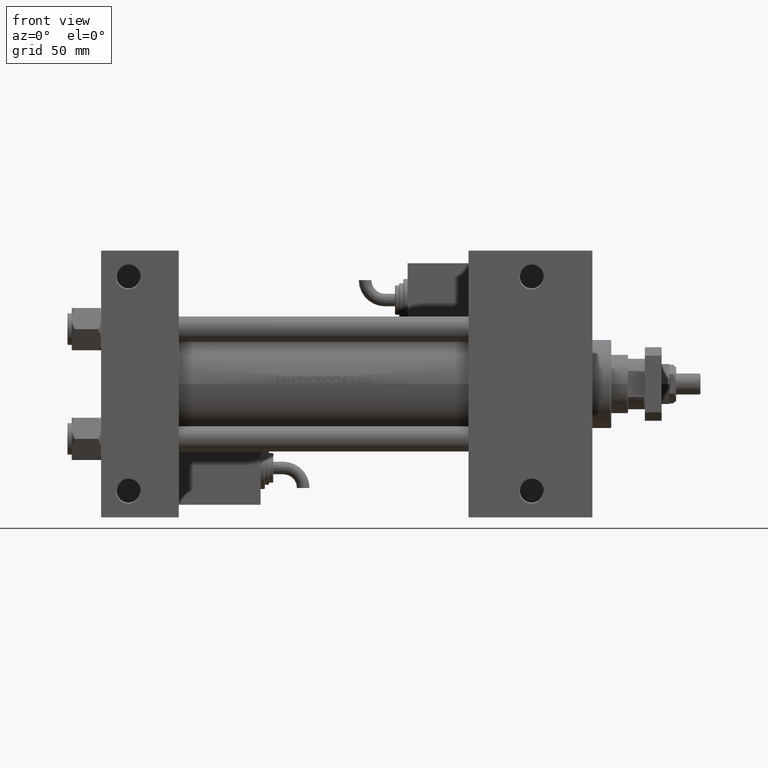
[diagram: clean part render]
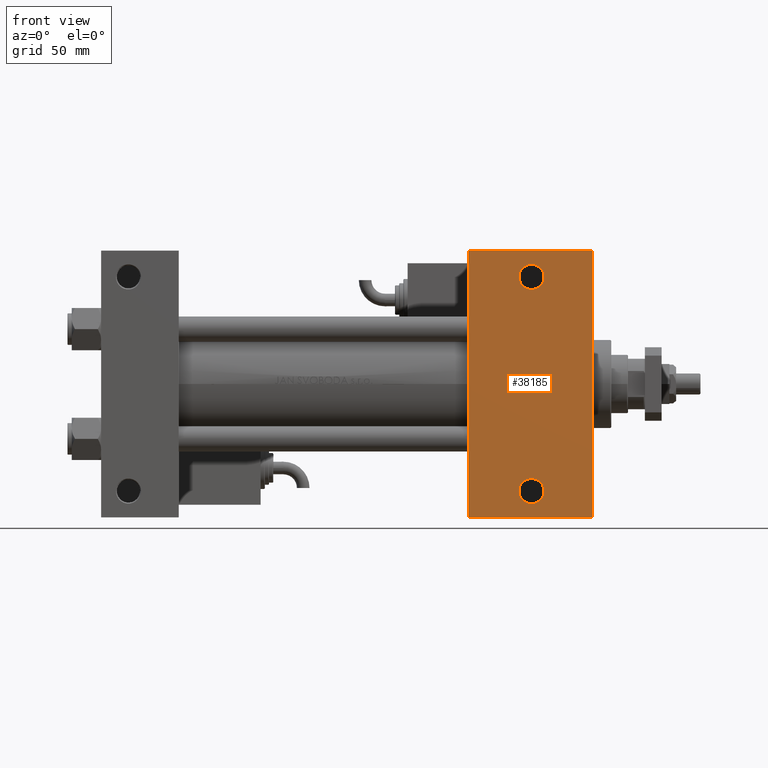
[diagram: same view with one face highlighted and labeled with its STEP entity id]
A machine part, front view. The second image highlights one B-rep face of the part: STEP entity #38185.
In plain terms, the highlighted planar face has unit normal (0, -1, 0).
Its self-contained STEP definition (entity closure, byte-faithful):
#188 = DIRECTION ( 'NONE',  ( -0.000000000000000000, -0.000000000000000000, 1.000000000000000000 ) ) ;
#2789 = VERTEX_POINT ( 'NONE', #34154 ) ;
#4715 = FACE_BOUND ( 'NONE', #12424, .T. ) ;
#5345 = CARTESIAN_POINT ( 'NONE',  ( 234.0000000000000284, 63.49999999999998579, -37.50000000000000000 ) ) ;
#5895 = CARTESIAN_POINT ( 'NONE',  ( 205.0000000000000284, 51.00000000000000000, -37.50000000000000000 ) ) ;
#6180 = CARTESIAN_POINT ( 'NONE',  ( 210.9994999999999834, -51.00000000000000000, -37.50000000000000000 ) ) ;
#6874 = VERTEX_POINT ( 'NONE', #5345 ) ;
#8831 = ORIENTED_EDGE ( 'NONE', *, *, #17809, .T. ) ;
#10861 = EDGE_LOOP ( 'NONE', ( #22305, #49641 ) ) ;
#12055 = VECTOR ( 'NONE', #16736, 1000.000000000000000 ) ;
#12424 = EDGE_LOOP ( 'NONE', ( #46837, #50899 ) ) ;
#13322 = AXIS2_PLACEMENT_3D ( 'NONE', #29817, #13662, #49792 ) ;
#13662 = DIRECTION ( 'NONE',  ( -0.000000000000000000, -0.000000000000000000, 1.000000000000000000 ) ) ;
#13835 = CARTESIAN_POINT ( 'NONE',  ( 234.0000000000000000, -63.50000000000001421, -37.50000000000000000 ) ) ;
#14227 = CARTESIAN_POINT ( 'NONE',  ( 205.0000000000000284, -51.00000000000000000, -37.50000000000000000 ) ) ;
#16330 = CIRCLE ( 'NONE', #53321, 5.999499999999962974 ) ;
#16736 = DIRECTION ( 'NONE',  ( 1.000000000000000000, 0.000000000000000000, 0.000000000000000000 ) ) ;
#16798 = EDGE_CURVE ( 'NONE', #27181, #40616, #42115, .T. ) ;
#17133 = DIRECTION ( 'NONE',  ( -1.000000000000000000, 0.000000000000000000, -0.000000000000000000 ) ) ;
#17585 = ORIENTED_EDGE ( 'NONE', *, *, #32674, .T. ) ;
#17809 = EDGE_CURVE ( 'NONE', #51225, #2789, #29023, .T. ) ;
#18276 = VERTEX_POINT ( 'NONE', #22728 ) ;
#19842 = EDGE_CURVE ( 'NONE', #40616, #27181, #16330, .T. ) ;
#21010 = VECTOR ( 'NONE', #50029, 1000.000000000000000 ) ;
#21213 = DIRECTION ( 'NONE',  ( -1.000000000000000000, -0.000000000000000000, -0.000000000000000000 ) ) ;
#21499 = ORIENTED_EDGE ( 'NONE', *, *, #23171, .T. ) ;
#22207 = LINE ( 'NONE', #38626, #28759 ) ;
#22305 = ORIENTED_EDGE ( 'NONE', *, *, #16798, .T. ) ;
#22536 = EDGE_CURVE ( 'NONE', #18276, #47869, #29675, .T. ) ;
#22728 = CARTESIAN_POINT ( 'NONE',  ( 199.0005000000000450, 51.00000000000000000, -37.50000000000000000 ) ) ;
#23171 = EDGE_CURVE ( 'NONE', #50017, #6874, #36393, .T. ) ;
#25163 = EDGE_LOOP ( 'NONE', ( #52570, #21499, #17585, #8831 ) ) ;
#25999 = DIRECTION ( 'NONE',  ( 0.000000000000000000, 0.000000000000000000, -1.000000000000000000 ) ) ;
#26256 = CARTESIAN_POINT ( 'NONE',  ( 234.0000000000000000, 37.50000000000000000, -37.50000000000000000 ) ) ;
#27181 = VERTEX_POINT ( 'NONE', #39231 ) ;
#28035 = CIRCLE ( 'NONE', #40086, 5.999499999999962974 ) ;
#28759 = VECTOR ( 'NONE', #51025, 1000.000000000000000 ) ;
#29023 = LINE ( 'NONE', #32548, #42158 ) ;
#29529 = LINE ( 'NONE', #30327, #21010 ) ;
#29675 = CIRCLE ( 'NONE', #13322, 5.999499999999962974 ) ;
#29817 = CARTESIAN_POINT ( 'NONE',  ( 205.0000000000000284, 51.00000000000000000, -37.50000000000000000 ) ) ;
#30031 = PLANE ( 'NONE',  #52059 ) ;
#30327 = CARTESIAN_POINT ( 'NONE',  ( 175.0000000000000284, 37.50000000000000000, -37.50000000000000000 ) ) ;
#30413 = DIRECTION ( 'NONE',  ( -0.000000000000000000, -0.000000000000000000, 1.000000000000000000 ) ) ;
#31357 = EDGE_CURVE ( 'NONE', #50017, #2789, #29529, .T. ) ;
#32548 = CARTESIAN_POINT ( 'NONE',  ( 175.0000000000000284, -63.50000000000001421, -37.50000000000000000 ) ) ;
#32674 = EDGE_CURVE ( 'NONE', #6874, #51225, #22207, .T. ) ;
#33084 = CARTESIAN_POINT ( 'NONE',  ( 210.9994999999999834, 51.00000000000000000, -37.50000000000000000 ) ) ;
#33509 = AXIS2_PLACEMENT_3D ( 'NONE', #14227, #46578, #46308 ) ;
#34154 = CARTESIAN_POINT ( 'NONE',  ( 175.0000000000000284, -63.50000000000001421, -37.50000000000000000 ) ) ;
#35071 = CARTESIAN_POINT ( 'NONE',  ( 175.0000000000000568, 63.49999999999998579, -37.50000000000000000 ) ) ;
#36393 = LINE ( 'NONE', #49327, #12055 ) ;
#37093 = CARTESIAN_POINT ( 'NONE',  ( 205.0000000000000284, -51.00000000000000000, -37.50000000000000000 ) ) ;
#37320 = FACE_OUTER_BOUND ( 'NONE', #25163, .T. ) ;
#37591 = FACE_BOUND ( 'NONE', #10861, .T. ) ;
#38185 = ADVANCED_FACE ( 'NONE', ( #4715, #37591, #37320 ), #30031, .T. ) ;
#38626 = CARTESIAN_POINT ( 'NONE',  ( 234.0000000000000000, 37.50000000000000000, -37.50000000000000000 ) ) ;
#39231 = CARTESIAN_POINT ( 'NONE',  ( 199.0005000000000450, -51.00000000000000000, -37.50000000000000000 ) ) ;
#40086 = AXIS2_PLACEMENT_3D ( 'NONE', #5895, #30413, #46860 ) ;
#40616 = VERTEX_POINT ( 'NONE', #6180 ) ;
#42115 = CIRCLE ( 'NONE', #33509, 5.999499999999962974 ) ;
#42158 = VECTOR ( 'NONE', #21213, 1000.000000000000000 ) ;
#46308 = DIRECTION ( 'NONE',  ( -1.000000000000000000, 0.000000000000000000, 0.000000000000000000 ) ) ;
#46578 = DIRECTION ( 'NONE',  ( -0.000000000000000000, -0.000000000000000000, 1.000000000000000000 ) ) ;
#46837 = ORIENTED_EDGE ( 'NONE', *, *, #22536, .T. ) ;
#46860 = DIRECTION ( 'NONE',  ( -1.000000000000000000, 0.000000000000000000, 0.000000000000000000 ) ) ;
#47869 = VERTEX_POINT ( 'NONE', #33084 ) ;
#48590 = EDGE_CURVE ( 'NONE', #47869, #18276, #28035, .T. ) ;
#49327 = CARTESIAN_POINT ( 'NONE',  ( 175.0000000000000568, 63.49999999999998579, -37.50000000000000000 ) ) ;
#49491 = DIRECTION ( 'NONE',  ( -1.000000000000000000, 0.000000000000000000, 0.000000000000000000 ) ) ;
#49641 = ORIENTED_EDGE ( 'NONE', *, *, #19842, .T. ) ;
#49792 = DIRECTION ( 'NONE',  ( -1.000000000000000000, 0.000000000000000000, 0.000000000000000000 ) ) ;
#50017 = VERTEX_POINT ( 'NONE', #35071 ) ;
#50029 = DIRECTION ( 'NONE',  ( 0.000000000000000000, -1.000000000000000000, 0.000000000000000000 ) ) ;
#50899 = ORIENTED_EDGE ( 'NONE', *, *, #48590, .T. ) ;
#51025 = DIRECTION ( 'NONE',  ( 0.000000000000000000, -1.000000000000000000, 0.000000000000000000 ) ) ;
#51225 = VERTEX_POINT ( 'NONE', #13835 ) ;
#52059 = AXIS2_PLACEMENT_3D ( 'NONE', #26256, #25999, #17133 ) ;
#52570 = ORIENTED_EDGE ( 'NONE', *, *, #31357, .F. ) ;
#53321 = AXIS2_PLACEMENT_3D ( 'NONE', #37093, #188, #49491 ) ;